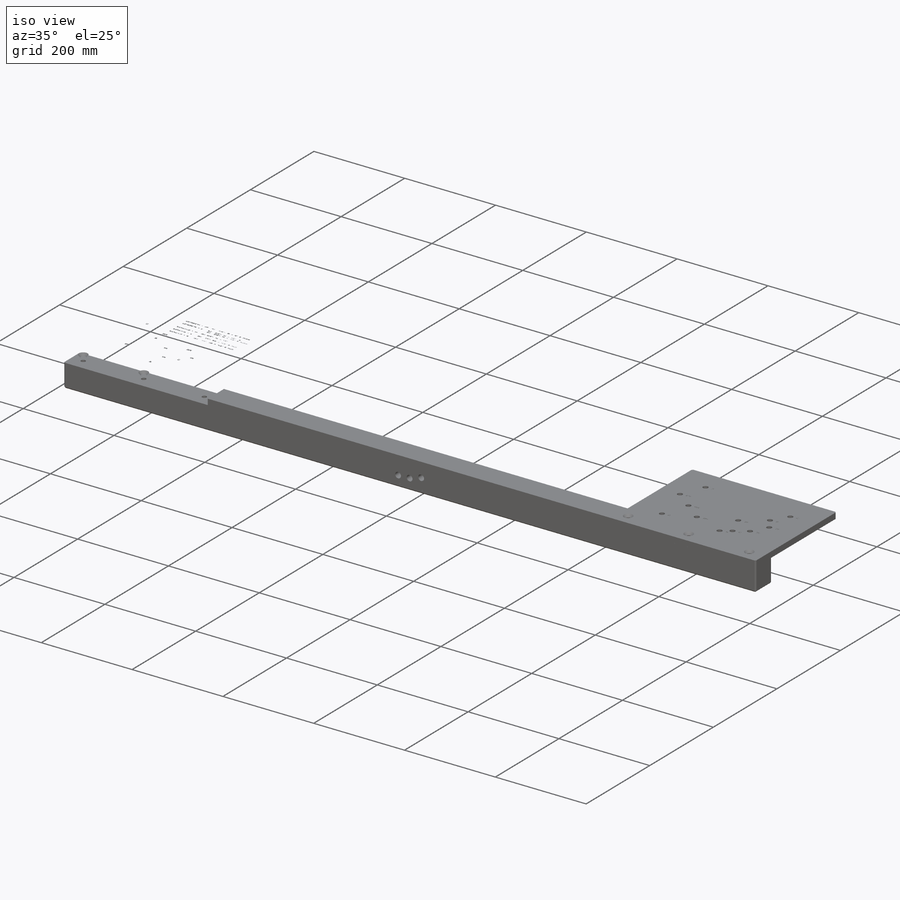
[diagram: iso view]
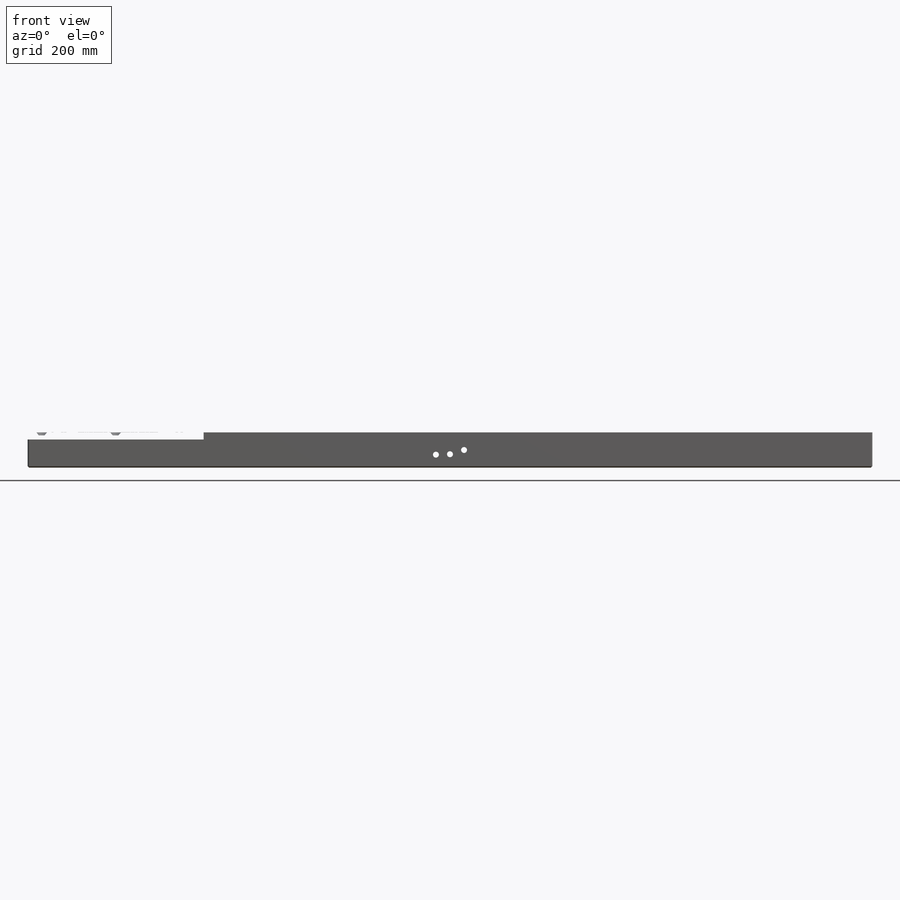
[diagram: front view]
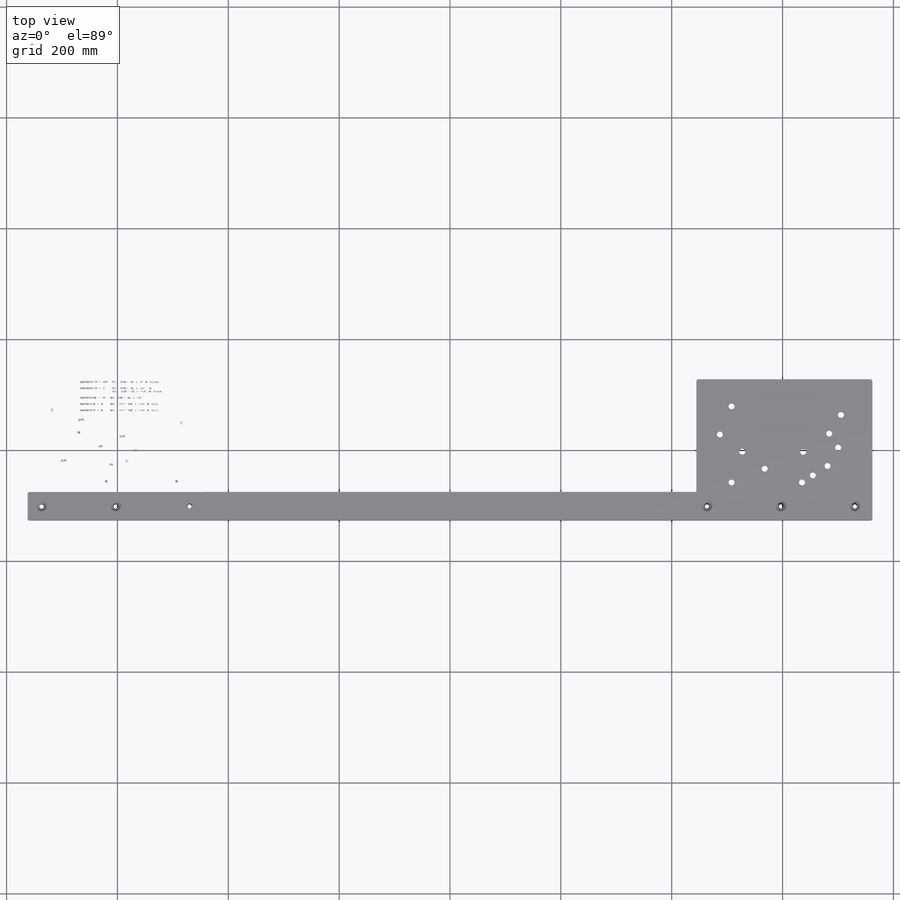
[diagram: top view]
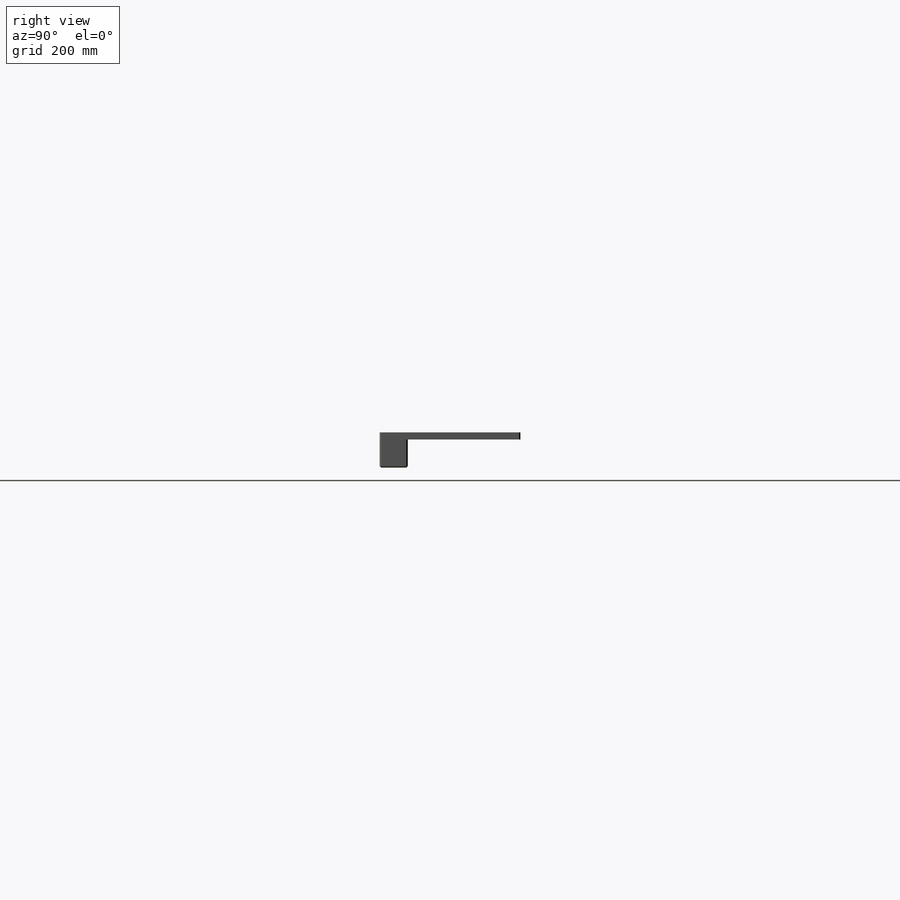
[diagram: right view]
SOLIDWORKS PART (.sldprt)
format: sldprt  version: not decoded by parser v0  size: 5,371,392 bytes
history: native  units: mm
features: sketch x24, cut_extrude x11, hole x5, extrude x3, chamfer x3, pattern_linear x2, material x1 + 1 further entry (+13 scaffold rows collapsed)
feature tree (63):
  scaffold x13  (default folders/planes/origin — collapsed)
  material  "6061-T6 Al"
  "Origin"  ID=-1
  sketch  "Sketch1"  dims[D1=1524.0mm D2=254.0mm]
  extrude  "Boss-Extrude1"  Depth=12.7mm
  sketch  "Sketch5"  dims[c1.D1=10.795mm c1.D4=10.795mm c1.D8=10.795mm c1.D9=10.795mm c1.D10=10.795mm c1.D11=10.795mm c1.D12=10.795mm c1.D13=10.795mm c1.D2=75.184mm c1.D3=148.844mm c2.D4=105.156mm c2.D5=78.994mm c2.D6=47.498mm c2.D7=153.162mm c2.D8=275.082mm c2.D9=234.696mm c2.D10=194.31mm c2.D11=161.29mm c2.D12=130.302mm c2.D13=99.314mm]
  cut_extrude  "D0902279  2A"  [1 undecoded]
  sketch  "Sketch14"  dims[c1.D1=7.62mm c1.D2=7.62mm c1.D3=7.62mm c1.D5=7.62mm c1.D6=7.62mm c1.D9=7.62mm c1.D13=7.62mm c1.D11=7.62mm c1.D12=7.62mm c2.D13=10.795mm c2.D2=95.504mm c2.D3=131.064mm c2.D4=280.162mm c2.D5=26.67mm c2.D6=68.072mm c2.D7=150.876mm c2.D8=23.368mm c2.D9=116.84mm c2.D10=150.368mm c2.D11=143.51mm c2.D12=267.716mm c3.D13=96.774mm c3.D2=149.352mm c3.D3=57.15mm c3.D4=80.01mm c3.D5=29.972mm c3.D6=164.338mm c3.D7=263.144mm c3.D1=48.768mm c3.D8=254.0mm c3.D9=107.442mm c3.D10=173.228mm c3.D11=56.642mm c3.D12=64.008mm]
  cut_extrude  "D0902273  C"  [1 undecoded]
  sketch  "Sketch6"  dims[c1.D1=10.795mm c1.D3=10.795mm c1.D4=10.795mm c1.D10=10.795mm c1.D2=61.722mm c2.D3=124.714mm c2.D4=80.772mm c2.D5=115.062mm c2.D6=178.054mm c2.D7=134.112mm c2.D8=123.19mm c2.D9=156.21mm c2.D10=130.81mm c2.D11=123.19mm c2.D12=130.81mm c2.D13=156.21mm]
  cut_extrude  "D0901520  1A"  [1 undecoded]
  sketch  "Sketch7"  dims[c1.D1=10.795mm c1.D3=10.795mm c1.D4=10.795mm c1.D5=10.795mm c1.D6=10.795mm c1.D7=10.795mm c1.D9=10.795mm c1.D10=10.795mm c1.D11=10.795mm c1.D12=10.795mm c1.D13=10.795mm c1.D2=97.79mm c2.D3=185.928mm c2.D4=185.928mm c2.D5=127.0mm c2.D6=77.724mm c2.D7=254.0mm c2.D8=77.7875mm c2.D9=127.0mm c2.D10=254.0mm c2.D11=97.79mm c2.D12=185.928mm c2.D13=185.928mm]
  cut_extrude  "D0901518-1519  B"  [1 undecoded]
  sketch  "Sketch16"  dims[c1.D1=7.62mm c1.D2=7.62mm c1.D4=7.62mm c1.D5=7.62mm c2.D1=12.7mm c2.D2=12.7mm c2.D3=12.7mm c2.D4=12.7mm c2.D5=12.7mm c2.D6=12.7mm]
  sketch  "Sketch18"  dims[c1.D1=10.795mm c1.D4=10.795mm c2.D1=12.7mm c2.D2=12.7mm c2.D3=12.7mm c2.D4=12.7mm c2.D5=12.7mm c2.D6=12.7mm]
  cut_extrude  "Cut-Extrude 1A"  Depth=0.254mm
  sketch  "Sketch19"  dims[c1.D1=10.795mm c1.D3=10.795mm c1.D4=10.795mm c1.D5=10.795mm c1.D6=10.795mm c2.D1=12.7mm c2.D2=12.7mm c2.D3=12.7mm c2.D4=12.7mm c2.D5=12.7mm c2.D6=12.7mm]
  cut_extrude  "Cut-Extrude 2A"  Depth=0.254mm
  sketch  "Sketch20"  dims[c1.D1=10.795mm c1.D2=10.795mm c1.D3=10.795mm c1.D4=10.795mm c1.D5=10.795mm c1.D6=10.795mm c2.D1=12.7mm c2.D2=12.7mm c2.D3=12.7mm c2.D4=12.7mm c2.D5=12.7mm c2.D6=12.7mm]
  cut_extrude  "Cut-Extrude B"  Depth=0.254mm
  cut_extrude  "Cut-Extrude C"  Depth=0.254mm
  sketch  "Sketch26"  dims[c1.D1=6.35mm c1.D2=76.2mm c2.D1=6.35mm c2.D2=95.25mm]
  cut_extrude  "Cut-Extrude TEXT"  Depth=0.254mm
  hole  "CSK for 3/8 Flat Head Machine Screw1"  Diameter=10.0838mm Depth=12.7mm
  sketch  "Sketch23"  dims[D1=25.4mm D2=25.4mm]
  sketch  "Sketch22"  dims[hole-wizard template sketch: 39 standard entries collapsed; hole parameters kept: c13.Hole Dia.=10.0838mm c13.Hole Depth=12.7mm c13.Near C'Sink Dia.=19.3548mm c13.D4=~33.297463mm c13.Near C'Sink Angle=82.0deg c14.D5=~14.816244mm c14.Drill Angle=118.0deg]
  pattern_linear  "LPattern1"  Count1=12 Count2=1 Spacing1=133.35mm Spacing2=2.54mm
  sketch  "Sketch4"  dims[D1=889.0mm D2=127.0mm]
  cut_extrude  "Cut-Extrude4"  Depth=12.7mm
  chamfer  "Chamfer2"  Distance=2.54mm Angle=45deg
  chamfer  "Chamfer3"  Distance=2.54mm Angle=45deg
  sketch  "Sketch21"  dims[D1=50.8mm D2=76.2mm D3=762.0mm D4=762.0mm]
  extrude  "Boss-Extrude2"  Depth=50.8mm
  hole  "1/2-13 Tapped Hole 1.58 C"  Diameter=10.71626mm Depth=254mm
  sketch  "Sketch11"  dims[c1.D1=40.132mm c1.D2=25.4mm c2.D1=23.368mm]
  sketch  "Sketch10"  dims[hole-wizard template sketch: 42 standard entries collapsed; hole parameters kept: c12.Thru Tap Drill Depth=254.0mm c12.Thread Major Dia.=12.7mm c12.Thread Depth=33.782mm]
  hole  "1/2-13 Tapped Hole 1.55 B"  Diameter=10.71626mm Depth=254mm
  sketch  "Sketch9"  dims[D1=24.13mm]
  sketch  "Sketch8"  dims[hole-wizard template sketch: 42 standard entries collapsed; hole parameters kept: c12.Thru Tap Drill Depth=254.0mm c12.Thread Major Dia.=12.7mm c12.Thread Depth=33.782mm]
  hole  "1/2-13 Tapped Hole 1.25 A"  Diameter=10.71626mm Depth=254mm
  sketch  "Sketch13"  dims[c1.D1=31.75mm c1.D2=25.4mm c2.D1=31.75mm c2.D2=25.4mm]
  sketch  "Sketch12"  dims[hole-wizard template sketch: 42 standard entries collapsed; hole parameters kept: c12.Thru Tap Drill Depth=254.0mm c12.Thread Major Dia.=12.7mm c12.Thread Depth=33.782mm]
  sketch  "Sketch15"  dims[D1=3.81mm]
  cut_extrude  "Cut-Extrude A B C"  Depth=0.254mm
  sketch  "Sketch27"  dims[D1=889.0mm D2=444.5mm]
  extrude  "Boss-Extrude3"  Depth=12.7mm
  hole  "3/8-16 Tapped Hole1"  Diameter=7.9375mm Depth=50.8mm
  sketch  "Sketch25"  dims[D1=25.4mm D2=25.4mm]
  sketch  "Sketch24"  dims[hole-wizard template sketch: 28 standard entries collapsed; hole parameters kept: c8.Tap Drill Dia.=7.9375mm c8.Tap Drill Depth=50.8mm c8.Thread Major Dia.=9.525mm c8.Thread Depth=25.4mm c8.D5=~14.816244mm c8.Drill Angle=118.0deg]
  pattern_linear  "LPattern2"  Count1=12 Count2=1 Spacing1=133.35mm Spacing2=2.54mm
  chamfer  "Chamfer1"  Distance=2.54mm Angle=45deg
decode coverage: 44 of 48 modeling features carry decoded parameters; 1 rows unclassified (native names shown)
note: ~ marks probable driven/reference dimensions
note: 4 parameter values undecoded
summary: no parameter record found for 4 features; Diameter pulled from absorbed wizard sketch
note: suppression state not decoded; provenance and decode notes live in map.json
